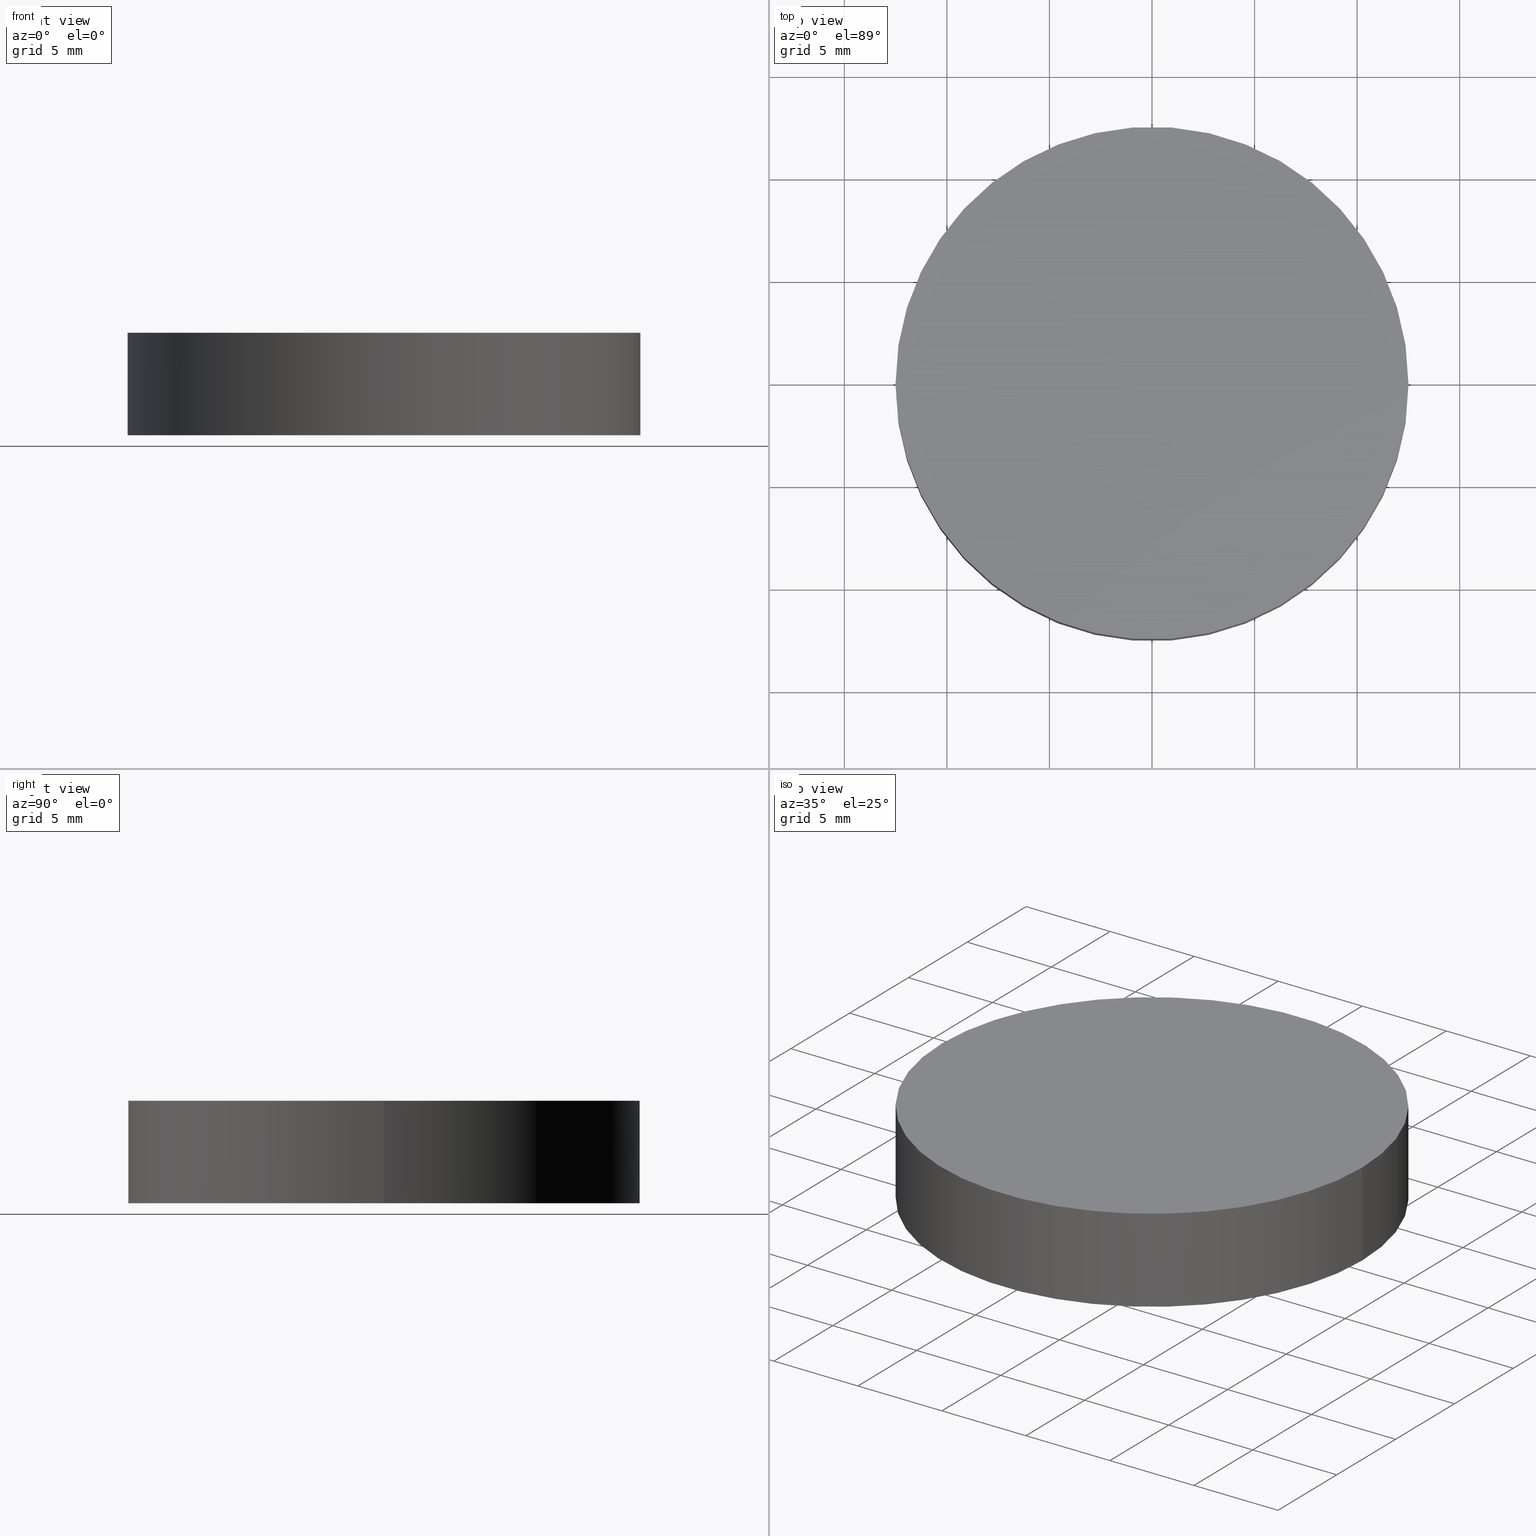
[diagram: canonical four-view strip — front | top / right | iso, engineering-drawing reading convention]
A machine part, canonical four-view strip (front | top / right | iso — engineering-drawing reading convention). The complete STEP part file that produces these views, byte-faithful:
ISO-10303-21;
HEADER;
FILE_DESCRIPTION (( 'STEP AP214' ),
    '1' );
FILE_NAME ('190134.STEP',
    '2019-07-17T09:00:59',
    ( 'user' ),
    ( '΢���й�' ),
    'SwSTEP 2.0',
    'SolidWorks 2016',
    '' );
FILE_SCHEMA (( 'AUTOMOTIVE_DESIGN' ));
ENDSEC;

DATA;
#1 = SURFACE_SIDE_STYLE ('',( #35 ) ) ;
#2 = CLOSED_SHELL ( 'NONE', ( #28, #65, #57, #48 ) ) ;
#3 = CARTESIAN_POINT ( 'NONE',  ( 0.0000000000000000000, 0.0000000000000000000, 0.0000000000000000000 ) ) ;
#4 = AXIS2_PLACEMENT_3D ( 'NONE', #113, #128, #87 ) ;
#5 =( NAMED_UNIT ( * ) PLANE_ANGLE_UNIT ( ) SI_UNIT ( $, .RADIAN. ) );
#6 = FACE_OUTER_BOUND ( 'NONE', #97, .T. ) ;
#7 = DIRECTION ( 'NONE',  ( 0.0000000000000000000, 0.0000000000000000000, 1.000000000000000000 ) ) ;
#8 = UNCERTAINTY_MEASURE_WITH_UNIT (LENGTH_MEASURE( 1.000000000000000100E-005 ), #29, 'distance_accuracy_value', 'NONE');
#9 = FACE_OUTER_BOUND ( 'NONE', #43, .T. ) ;
#10 = DIRECTION ( 'NONE',  ( 1.000000000000000000, 0.0000000000000000000, 0.0000000000000000000 ) ) ;
#11 = DIRECTION ( 'NONE',  ( -0.0000000000000000000, -0.0000000000000000000, -1.000000000000000000 ) ) ;
#12 = CARTESIAN_POINT ( 'NONE',  ( 12.50000000000000000, 1.530808498934191500E-015, 5.000000000000000000 ) ) ;
#13 = AXIS2_PLACEMENT_3D ( 'NONE', #109, #7, #79 ) ;
#14 = DIRECTION ( 'NONE',  ( 0.0000000000000000000, 0.0000000000000000000, 1.000000000000000000 ) ) ;
#15 = DIRECTION ( 'NONE',  ( 0.0000000000000000000, 0.0000000000000000000, 1.000000000000000000 ) ) ;
#16 = COLOUR_RGB ( '',1.000000000000000000, 1.000000000000000000, 1.000000000000000000 ) ;
#17 =( NAMED_UNIT ( * ) SI_UNIT ( $, .STERADIAN. ) SOLID_ANGLE_UNIT ( ) );
#18 = ORIENTED_EDGE ( 'NONE', *, *, #62, .F. ) ;
#19 = PRODUCT_DEFINITION ( 'δ֪', '', #30, #61 ) ;
#20 = LINE ( 'NONE', #12, #51 ) ;
#21 = EDGE_CURVE ( 'NONE', #90, #120, #46, .T. ) ;
#22 = DIRECTION ( 'NONE',  ( -0.0000000000000000000, -0.0000000000000000000, -1.000000000000000000 ) ) ;
#23 = CARTESIAN_POINT ( 'NONE',  ( 0.0000000000000000000, 0.0000000000000000000, 0.0000000000000000000 ) ) ;
#24 = CARTESIAN_POINT ( 'NONE',  ( -12.50000000000000000, 0.0000000000000000000, 0.0000000000000000000 ) ) ;
#25 = DIRECTION ( 'NONE',  ( -0.0000000000000000000, -0.0000000000000000000, -1.000000000000000000 ) ) ;
#26 = DIRECTION ( 'NONE',  ( 1.000000000000000000, 0.0000000000000000000, 0.0000000000000000000 ) ) ;
#27 = CARTESIAN_POINT ( 'NONE',  ( 0.0000000000000000000, 0.0000000000000000000, 5.000000000000000000 ) ) ;
#28 = ADVANCED_FACE ( 'NONE', ( #6 ), #78, .T. ) ;
#29 =( LENGTH_UNIT ( ) NAMED_UNIT ( * ) SI_UNIT ( .MILLI., .METRE. ) );
#30 = PRODUCT_DEFINITION_FORMATION_WITH_SPECIFIED_SOURCE ( '�κ�', '', #32, .NOT_KNOWN. ) ;
#31 = AXIS2_PLACEMENT_3D ( 'NONE', #27, #22, #89 ) ;
#32 = PRODUCT ( '190134', '190134', '', ( #140 ) ) ;
#33 = SHAPE_DEFINITION_REPRESENTATION ( #107, #118 ) ;
#34 = EDGE_LOOP ( 'NONE', ( #18, #84, #130, #135 ) ) ;
#35 = SURFACE_STYLE_FILL_AREA ( #73 ) ;
#36 = ORIENTED_EDGE ( 'NONE', *, *, #21, .F. ) ;
#37 = FILL_AREA_STYLE_COLOUR ( '', #106 ) ;
#38 = CARTESIAN_POINT ( 'NONE',  ( -12.50000000000000000, 0.0000000000000000000, 5.000000000000000000 ) ) ;
#39 = DIRECTION ( 'NONE',  ( -1.000000000000000000, 0.0000000000000000000, 0.0000000000000000000 ) ) ;
#40 = PRODUCT_RELATED_PRODUCT_CATEGORY ( 'part', '', ( #32 ) ) ;
#41 = CARTESIAN_POINT ( 'NONE',  ( 0.0000000000000000000, 0.0000000000000000000, 0.0000000000000000000 ) ) ;
#42 = AXIS2_PLACEMENT_3D ( 'NONE', #127, #47, #110 ) ;
#43 = EDGE_LOOP ( 'NONE', ( #36, #63 ) ) ;
#44 = SURFACE_SIDE_STYLE ('',( #115 ) ) ;
#45 = AXIS2_PLACEMENT_3D ( 'NONE', #23, #83, #10 ) ;
#46 = CIRCLE ( 'NONE', #69, 12.50000000000000000 ) ;
#47 = DIRECTION ( 'NONE',  ( 0.0000000000000000000, 0.0000000000000000000, 1.000000000000000000 ) ) ;
#48 = ADVANCED_FACE ( 'NONE', ( #9 ), #54, .F. ) ;
#49 = DIRECTION ( 'NONE',  ( 1.000000000000000000, 0.0000000000000000000, -0.0000000000000000000 ) ) ;
#50 = CARTESIAN_POINT ( 'NONE',  ( 0.0000000000000000000, 0.0000000000000000000, 5.000000000000000000 ) ) ;
#51 = VECTOR ( 'NONE', #25, 1000.000000000000000 ) ;
#52 =( NAMED_UNIT ( * ) PLANE_ANGLE_UNIT ( ) SI_UNIT ( $, .RADIAN. ) );
#53 = DIRECTION ( 'NONE',  ( -0.0000000000000000000, -0.0000000000000000000, -1.000000000000000000 ) ) ;
#54 = PLANE ( 'NONE',  #95 ) ;
#55 = LINE ( 'NONE', #38, #82 ) ;
#56 = ORIENTED_EDGE ( 'NONE', *, *, #124, .T. ) ;
#57 = ADVANCED_FACE ( 'NONE', ( #67 ), #99, .T. ) ;
#58 = CIRCLE ( 'NONE', #45, 12.50000000000000000 ) ;
#59 = PRESENTATION_STYLE_ASSIGNMENT (( #64 ) ) ;
#60 = ORIENTED_EDGE ( 'NONE', *, *, #124, .F. ) ;
#61 = PRODUCT_DEFINITION_CONTEXT ( 'detailed design', #68, 'design' ) ;
#62 = EDGE_CURVE ( 'NONE', #103, #120, #20, .T. ) ;
#63 = ORIENTED_EDGE ( 'NONE', *, *, #119, .F. ) ;
#64 = SURFACE_STYLE_USAGE ( .BOTH. , #1 ) ;
#65 = ADVANCED_FACE ( 'NONE', ( #116 ), #123, .T. ) ;
#66 = UNCERTAINTY_MEASURE_WITH_UNIT (LENGTH_MEASURE( 1.000000000000000100E-005 ), #136, 'distance_accuracy_value', 'NONE');
#67 = FACE_OUTER_BOUND ( 'NONE', #70, .T. ) ;
#68 = APPLICATION_CONTEXT ( 'automotive_design' ) ;
#69 = AXIS2_PLACEMENT_3D ( 'NONE', #41, #15, #76 ) ;
#70 = EDGE_LOOP ( 'NONE', ( #81, #56 ) ) ;
#71 = MECHANICAL_DESIGN_GEOMETRIC_PRESENTATION_REPRESENTATION (  '', ( #75 ), #80 ) ;
#72 = VERTEX_POINT ( 'NONE', #111 ) ;
#73 = FILL_AREA_STYLE ('',( #37 ) ) ;
#74 = CARTESIAN_POINT ( 'NONE',  ( 12.50000000000000000, 1.530808498934191500E-015, 0.0000000000000000000 ) ) ;
#75 = STYLED_ITEM ( 'NONE', ( #59 ), #121 ) ;
#76 = DIRECTION ( 'NONE',  ( 1.000000000000000000, 0.0000000000000000000, 0.0000000000000000000 ) ) ;
#77 = FILL_AREA_STYLE ('',( #98 ) ) ;
#78 = CYLINDRICAL_SURFACE ( 'NONE', #31, 12.50000000000000000 ) ;
#79 = DIRECTION ( 'NONE',  ( 1.000000000000000000, 0.0000000000000000000, 0.0000000000000000000 ) ) ;
#80 =( GEOMETRIC_REPRESENTATION_CONTEXT ( 3 ) GLOBAL_UNCERTAINTY_ASSIGNED_CONTEXT ( ( #66 ) ) GLOBAL_UNIT_ASSIGNED_CONTEXT ( ( #136, #52, #126 ) ) REPRESENTATION_CONTEXT ( 'NONE', 'WORKASPACE' ) );
#81 = ORIENTED_EDGE ( 'NONE', *, *, #108, .T. ) ;
#82 = VECTOR ( 'NONE', #11, 1000.000000000000000 ) ;
#83 = DIRECTION ( 'NONE',  ( 0.0000000000000000000, 0.0000000000000000000, 1.000000000000000000 ) ) ;
#84 = ORIENTED_EDGE ( 'NONE', *, *, #108, .F. ) ;
#85 = CARTESIAN_POINT ( 'NONE',  ( 12.50000000000000000, 1.530808498934191500E-015, 5.000000000000000000 ) ) ;
#86 = AXIS2_PLACEMENT_3D ( 'NONE', #50, #88, #26 ) ;
#87 = DIRECTION ( 'NONE',  ( 1.000000000000000000, 0.0000000000000000000, -0.0000000000000000000 ) ) ;
#88 = DIRECTION ( 'NONE',  ( 0.0000000000000000000, 0.0000000000000000000, 1.000000000000000000 ) ) ;
#89 = DIRECTION ( 'NONE',  ( -1.000000000000000000, 0.0000000000000000000, 0.0000000000000000000 ) ) ;
#90 = VERTEX_POINT ( 'NONE', #24 ) ;
#91 = CIRCLE ( 'NONE', #86, 12.50000000000000000 ) ;
#92 = PRESENTATION_LAYER_ASSIGNMENT (  '', '', ( #75 ) ) ;
#93 = AXIS2_PLACEMENT_3D ( 'NONE', #137, #53, #39 ) ;
#94 =( GEOMETRIC_REPRESENTATION_CONTEXT ( 3 ) GLOBAL_UNCERTAINTY_ASSIGNED_CONTEXT ( ( #133 ) ) GLOBAL_UNIT_ASSIGNED_CONTEXT ( ( #100, #5, #101 ) ) REPRESENTATION_CONTEXT ( 'NONE', 'WORKASPACE' ) );
#95 = AXIS2_PLACEMENT_3D ( 'NONE', #3, #14, #49 ) ;
#96 = PRESENTATION_STYLE_ASSIGNMENT (( #117 ) ) ;
#97 = EDGE_LOOP ( 'NONE', ( #60, #134, #105, #139 ) ) ;
#98 = FILL_AREA_STYLE_COLOUR ( '', #16 ) ;
#99 = PLANE ( 'NONE',  #4 ) ;
#100 =( LENGTH_UNIT ( ) NAMED_UNIT ( * ) SI_UNIT ( .MILLI., .METRE. ) );
#101 =( NAMED_UNIT ( * ) SI_UNIT ( $, .STERADIAN. ) SOLID_ANGLE_UNIT ( ) );
#102 = EDGE_CURVE ( 'NONE', #72, #90, #55, .T. ) ;
#103 = VERTEX_POINT ( 'NONE', #85 ) ;
#104 =( NAMED_UNIT ( * ) PLANE_ANGLE_UNIT ( ) SI_UNIT ( $, .RADIAN. ) );
#105 = ORIENTED_EDGE ( 'NONE', *, *, #119, .T. ) ;
#106 = COLOUR_RGB ( '',1.000000000000000000, 1.000000000000000000, 1.000000000000000000 ) ;
#107 = PRODUCT_DEFINITION_SHAPE ( 'NONE', 'NONE',  #19 ) ;
#108 = EDGE_CURVE ( 'NONE', #72, #103, #125, .T. ) ;
#109 = CARTESIAN_POINT ( 'NONE',  ( 0.0000000000000000000, 0.0000000000000000000, 0.0000000000000000000 ) ) ;
#110 = DIRECTION ( 'NONE',  ( 1.000000000000000000, 0.0000000000000000000, 0.0000000000000000000 ) ) ;
#111 = CARTESIAN_POINT ( 'NONE',  ( -12.50000000000000000, 0.0000000000000000000, 5.000000000000000000 ) ) ;
#112 = STYLED_ITEM ( 'NONE', ( #96 ), #118 ) ;
#113 = CARTESIAN_POINT ( 'NONE',  ( 0.0000000000000000000, 0.0000000000000000000, 5.000000000000000000 ) ) ;
#114 = APPLICATION_CONTEXT ( 'automotive_design' ) ;
#115 = SURFACE_STYLE_FILL_AREA ( #77 ) ;
#116 = FACE_OUTER_BOUND ( 'NONE', #34, .T. ) ;
#117 = SURFACE_STYLE_USAGE ( .BOTH. , #44 ) ;
#118 = ADVANCED_BREP_SHAPE_REPRESENTATION ( '190134', ( #121, #13 ), #94 ) ;
#119 = EDGE_CURVE ( 'NONE', #120, #90, #58, .T. ) ;
#120 = VERTEX_POINT ( 'NONE', #74 ) ;
#121 = MANIFOLD_SOLID_BREP ( '͹̨-����1', #2 ) ;
#122 = PRESENTATION_LAYER_ASSIGNMENT (  '', '', ( #112 ) ) ;
#123 = CYLINDRICAL_SURFACE ( 'NONE', #93, 12.50000000000000000 ) ;
#124 = EDGE_CURVE ( 'NONE', #103, #72, #91, .T. ) ;
#125 = CIRCLE ( 'NONE', #42, 12.50000000000000000 ) ;
#126 =( NAMED_UNIT ( * ) SI_UNIT ( $, .STERADIAN. ) SOLID_ANGLE_UNIT ( ) );
#127 = CARTESIAN_POINT ( 'NONE',  ( 0.0000000000000000000, 0.0000000000000000000, 5.000000000000000000 ) ) ;
#128 = DIRECTION ( 'NONE',  ( 0.0000000000000000000, 0.0000000000000000000, 1.000000000000000000 ) ) ;
#129 = APPLICATION_PROTOCOL_DEFINITION ( 'draft international standard', 'automotive_design', 1998, #114 ) ;
#130 = ORIENTED_EDGE ( 'NONE', *, *, #102, .T. ) ;
#131 = APPLICATION_PROTOCOL_DEFINITION ( 'draft international standard', 'automotive_design', 1998, #68 ) ;
#132 = MECHANICAL_DESIGN_GEOMETRIC_PRESENTATION_REPRESENTATION (  '', ( #112 ), #138 ) ;
#133 = UNCERTAINTY_MEASURE_WITH_UNIT (LENGTH_MEASURE( 1.000000000000000100E-005 ), #100, 'distance_accuracy_value', 'NONE');
#134 = ORIENTED_EDGE ( 'NONE', *, *, #62, .T. ) ;
#135 = ORIENTED_EDGE ( 'NONE', *, *, #21, .T. ) ;
#136 =( LENGTH_UNIT ( ) NAMED_UNIT ( * ) SI_UNIT ( .MILLI., .METRE. ) );
#137 = CARTESIAN_POINT ( 'NONE',  ( 0.0000000000000000000, 0.0000000000000000000, 5.000000000000000000 ) ) ;
#138 =( GEOMETRIC_REPRESENTATION_CONTEXT ( 3 ) GLOBAL_UNCERTAINTY_ASSIGNED_CONTEXT ( ( #8 ) ) GLOBAL_UNIT_ASSIGNED_CONTEXT ( ( #29, #104, #17 ) ) REPRESENTATION_CONTEXT ( 'NONE', 'WORKASPACE' ) );
#139 = ORIENTED_EDGE ( 'NONE', *, *, #102, .F. ) ;
#140 = PRODUCT_CONTEXT ( 'NONE', #114, 'mechanical' ) ;
ENDSEC;
END-ISO-10303-21;
